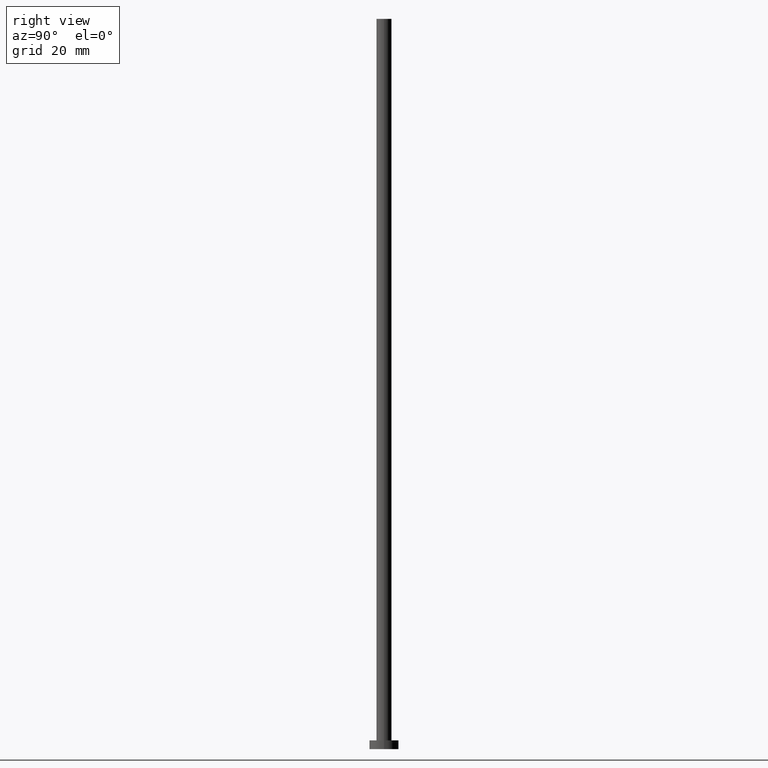
[diagram: clean part render]
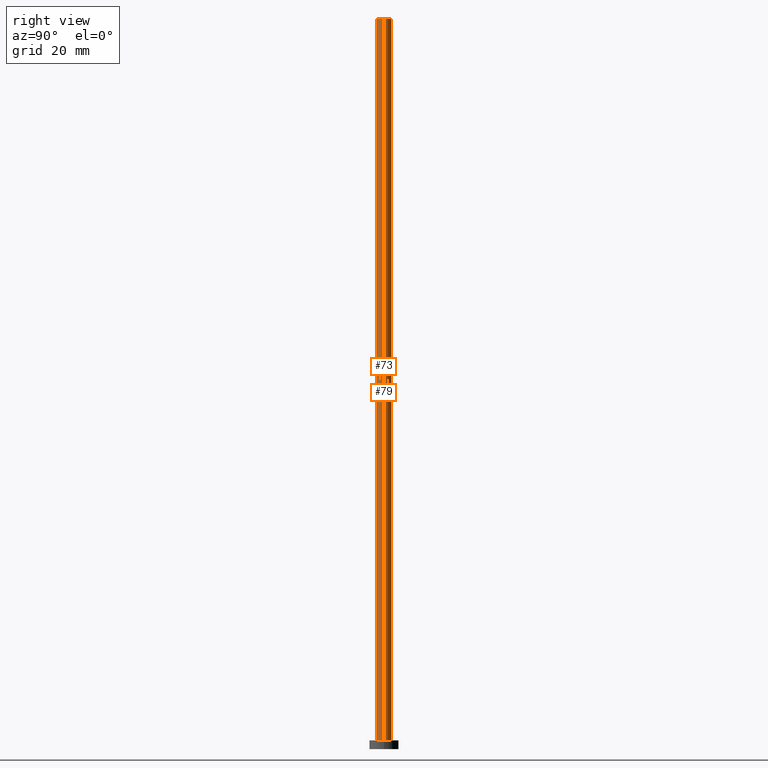
[diagram: same view with one multi-face feature highlighted, each face labeled with its STEP entity id]
A machine part, right view. The highlighted faces form ONE feature: a constant-radius fillet chain: 2 tangent blend faces with common blend radius 2.6 mm. The faces share edges in the B-rep.
Their STEP definitions:
[1] entity #79 (Cylinder):
#1 = VECTOR ( 'NONE', #34, 1000.000000000000000 ) ;
#6 = VERTEX_POINT ( 'NONE', #209 ) ;
#8 = VERTEX_POINT ( 'NONE', #173 ) ;
#12 = LINE ( 'NONE', #210, #1 ) ;
#20 = LINE ( 'NONE', #217, #21 ) ;
#21 = VECTOR ( 'NONE', #238, 1000.000000000000000 ) ;
#27 = CARTESIAN_POINT ( 'NONE',  ( 2.600000000000000089, 3.184081677783118191E-16, 250.0000000000000000 ) ) ;
#34 = DIRECTION ( 'NONE',  ( -0.000000000000000000, -0.000000000000000000, -1.000000000000000000 ) ) ;
#43 = EDGE_CURVE ( 'NONE', #162, #91, #20, .T. ) ;
#57 = CARTESIAN_POINT ( 'NONE',  ( 0.000000000000000000, 0.000000000000000000, 250.0000000000000000 ) ) ;
#76 = ORIENTED_EDGE ( 'NONE', *, *, #184, .T. ) ;
#79 = ADVANCED_FACE ( 'NONE', ( #178 ), #215, .T. ) ;
#82 = AXIS2_PLACEMENT_3D ( 'NONE', #190, #93, #133 ) ;
#87 = CARTESIAN_POINT ( 'NONE',  ( 2.600000000000000089, 3.184081677783118191E-16, 3.000000000000000000 ) ) ;
#90 = EDGE_CURVE ( 'NONE', #162, #8, #92, .T. ) ;
#91 = VERTEX_POINT ( 'NONE', #87 ) ;
#92 = CIRCLE ( 'NONE', #172, 2.600000000000000089 ) ;
#93 = DIRECTION ( 'NONE',  ( 0.000000000000000000, 0.000000000000000000, 1.000000000000000000 ) ) ;
#98 = AXIS2_PLACEMENT_3D ( 'NONE', #57, #252, #234 ) ;
#109 = ORIENTED_EDGE ( 'NONE', *, *, #187, .F. ) ;
#133 = DIRECTION ( 'NONE',  ( 1.000000000000000000, 0.000000000000000000, 0.000000000000000000 ) ) ;
#149 = ORIENTED_EDGE ( 'NONE', *, *, #90, .F. ) ;
#162 = VERTEX_POINT ( 'NONE', #27 ) ;
#163 = DIRECTION ( 'NONE',  ( 1.000000000000000000, 0.000000000000000000, 0.000000000000000000 ) ) ;
#172 = AXIS2_PLACEMENT_3D ( 'NONE', #200, #240, #163 ) ;
#173 = CARTESIAN_POINT ( 'NONE',  ( -2.600000000000000089, 0.000000000000000000, 250.0000000000000000 ) ) ;
#178 = FACE_OUTER_BOUND ( 'NONE', #242, .T. ) ;
#184 = EDGE_CURVE ( 'NONE', #91, #6, #253, .T. ) ;
#187 = EDGE_CURVE ( 'NONE', #8, #6, #12, .T. ) ;
#190 = CARTESIAN_POINT ( 'NONE',  ( 0.000000000000000000, 0.000000000000000000, 3.000000000000000000 ) ) ;
#200 = CARTESIAN_POINT ( 'NONE',  ( 0.000000000000000000, 0.000000000000000000, 250.0000000000000000 ) ) ;
#206 = ORIENTED_EDGE ( 'NONE', *, *, #43, .T. ) ;
#209 = CARTESIAN_POINT ( 'NONE',  ( -2.600000000000000089, 0.000000000000000000, 3.000000000000000000 ) ) ;
#210 = CARTESIAN_POINT ( 'NONE',  ( -2.600000000000000089, 0.000000000000000000, 250.0000000000000000 ) ) ;
#215 = CYLINDRICAL_SURFACE ( 'NONE', #98, 2.600000000000000089 ) ;
#217 = CARTESIAN_POINT ( 'NONE',  ( 2.600000000000000089, 3.184081677783118191E-16, 250.0000000000000000 ) ) ;
#234 = DIRECTION ( 'NONE',  ( -1.000000000000000000, 0.000000000000000000, 0.000000000000000000 ) ) ;
#238 = DIRECTION ( 'NONE',  ( -0.000000000000000000, -0.000000000000000000, -1.000000000000000000 ) ) ;
#240 = DIRECTION ( 'NONE',  ( 0.000000000000000000, 0.000000000000000000, 1.000000000000000000 ) ) ;
#242 = EDGE_LOOP ( 'NONE', ( #149, #206, #76, #109 ) ) ;
#252 = DIRECTION ( 'NONE',  ( -0.000000000000000000, -0.000000000000000000, -1.000000000000000000 ) ) ;
#253 = CIRCLE ( 'NONE', #82, 2.600000000000000089 ) ;
[2] entity #73 (Cylinder):
#1 = VECTOR ( 'NONE', #34, 1000.000000000000000 ) ;
#6 = VERTEX_POINT ( 'NONE', #209 ) ;
#8 = VERTEX_POINT ( 'NONE', #173 ) ;
#12 = LINE ( 'NONE', #210, #1 ) ;
#20 = LINE ( 'NONE', #217, #21 ) ;
#21 = VECTOR ( 'NONE', #238, 1000.000000000000000 ) ;
#24 = CARTESIAN_POINT ( 'NONE',  ( 0.000000000000000000, 0.000000000000000000, 250.0000000000000000 ) ) ;
#27 = CARTESIAN_POINT ( 'NONE',  ( 2.600000000000000089, 3.184081677783118191E-16, 250.0000000000000000 ) ) ;
#34 = DIRECTION ( 'NONE',  ( -0.000000000000000000, -0.000000000000000000, -1.000000000000000000 ) ) ;
#41 = DIRECTION ( 'NONE',  ( -0.000000000000000000, -0.000000000000000000, -1.000000000000000000 ) ) ;
#43 = EDGE_CURVE ( 'NONE', #162, #91, #20, .T. ) ;
#45 = AXIS2_PLACEMENT_3D ( 'NONE', #241, #183, #122 ) ;
#67 = ORIENTED_EDGE ( 'NONE', *, *, #107, .T. ) ;
#69 = AXIS2_PLACEMENT_3D ( 'NONE', #24, #102, #141 ) ;
#73 = ADVANCED_FACE ( 'NONE', ( #235 ), #138, .T. ) ;
#78 = CIRCLE ( 'NONE', #69, 2.600000000000000089 ) ;
#83 = ORIENTED_EDGE ( 'NONE', *, *, #187, .T. ) ;
#87 = CARTESIAN_POINT ( 'NONE',  ( 2.600000000000000089, 3.184081677783118191E-16, 3.000000000000000000 ) ) ;
#91 = VERTEX_POINT ( 'NONE', #87 ) ;
#102 = DIRECTION ( 'NONE',  ( 0.000000000000000000, 0.000000000000000000, 1.000000000000000000 ) ) ;
#107 = EDGE_CURVE ( 'NONE', #6, #91, #167, .T. ) ;
#122 = DIRECTION ( 'NONE',  ( 1.000000000000000000, 0.000000000000000000, 0.000000000000000000 ) ) ;
#138 = CYLINDRICAL_SURFACE ( 'NONE', #245, 2.600000000000000089 ) ;
#141 = DIRECTION ( 'NONE',  ( 1.000000000000000000, 0.000000000000000000, 0.000000000000000000 ) ) ;
#143 = ORIENTED_EDGE ( 'NONE', *, *, #154, .F. ) ;
#154 = EDGE_CURVE ( 'NONE', #8, #162, #78, .T. ) ;
#162 = VERTEX_POINT ( 'NONE', #27 ) ;
#167 = CIRCLE ( 'NONE', #45, 2.600000000000000089 ) ;
#168 = ORIENTED_EDGE ( 'NONE', *, *, #43, .F. ) ;
#173 = CARTESIAN_POINT ( 'NONE',  ( -2.600000000000000089, 0.000000000000000000, 250.0000000000000000 ) ) ;
#183 = DIRECTION ( 'NONE',  ( 0.000000000000000000, 0.000000000000000000, 1.000000000000000000 ) ) ;
#187 = EDGE_CURVE ( 'NONE', #8, #6, #12, .T. ) ;
#194 = DIRECTION ( 'NONE',  ( -1.000000000000000000, 0.000000000000000000, 0.000000000000000000 ) ) ;
#209 = CARTESIAN_POINT ( 'NONE',  ( -2.600000000000000089, 0.000000000000000000, 3.000000000000000000 ) ) ;
#210 = CARTESIAN_POINT ( 'NONE',  ( -2.600000000000000089, 0.000000000000000000, 250.0000000000000000 ) ) ;
#217 = CARTESIAN_POINT ( 'NONE',  ( 2.600000000000000089, 3.184081677783118191E-16, 250.0000000000000000 ) ) ;
#220 = CARTESIAN_POINT ( 'NONE',  ( 0.000000000000000000, 0.000000000000000000, 250.0000000000000000 ) ) ;
#235 = FACE_OUTER_BOUND ( 'NONE', #251, .T. ) ;
#238 = DIRECTION ( 'NONE',  ( -0.000000000000000000, -0.000000000000000000, -1.000000000000000000 ) ) ;
#241 = CARTESIAN_POINT ( 'NONE',  ( 0.000000000000000000, 0.000000000000000000, 3.000000000000000000 ) ) ;
#245 = AXIS2_PLACEMENT_3D ( 'NONE', #220, #41, #194 ) ;
#251 = EDGE_LOOP ( 'NONE', ( #168, #143, #83, #67 ) ) ;